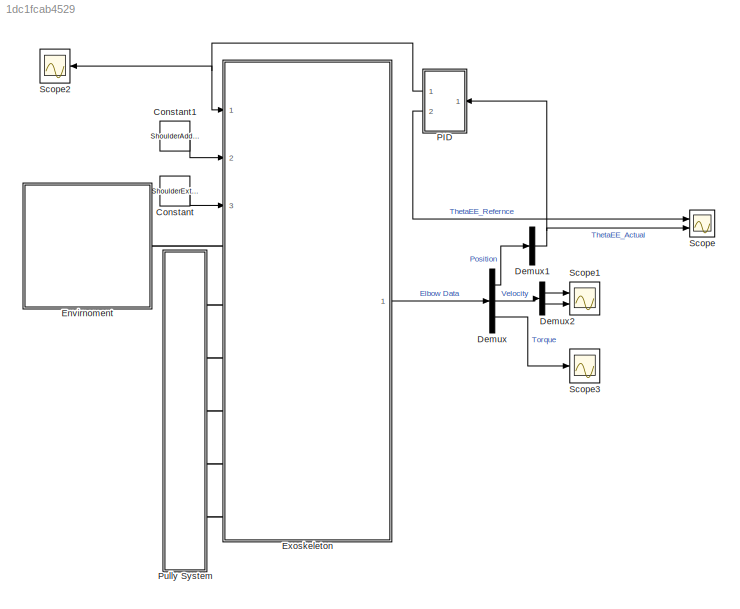
MODEL slx_1dc1fcab4529
KIND model
CONFIG AbsTol = 1e-3
CONFIG EnableMultiTasking = on
CONFIG FixedStep = 0.001
CONFIG MaxStep = auto
CONFIG MinStep = auto
CONFIG RelTol = 1e-3
CONFIG SampleTimeConstraint = Unconstrained
CONFIG SolverName = FixedStepAuto
CONFIG StartTime = 0.0
CONFIG StopTime = 10
BLOCK [Constant] Constant
  Value = ShoulderExtension
BLOCK [Constant] Constant1
  Value = ShoulderAdduction
BLOCK [Demux] Demux
  Outputs = 3
  Ports = [1, 3]
BLOCK [Demux] Demux1
  Outputs = 1
  Ports = [1, 1]
BLOCK [Demux] Demux2
  Outputs = 2
  Ports = [1, 2]
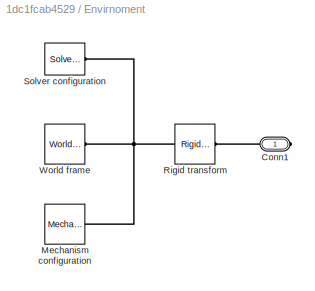
BLOCK [SubSystem] Envirnoment
  Ports = [0, 0, 0, 0, 0, 0, 1]
  RequestExecContextInheritance = off
BLOCK [PMIOPort] Envirnoment/Conn1
  Side = Right
BLOCK [Reference] Envirnoment/Mechanism configuration  REF=sm_lib/Utilities/Mechanism
Configuration
  Ports = [0, 0, 0, 0, 0, 0, 1]
  SourceBlock = sm_lib/Utilities/Mechanism\nConfiguration
  SourceProductBaseCode = MS
  SourceType = Mechanism\nConfiguration
BLOCK [Reference] Envirnoment/Rigid transform  REF=sm_lib/Frames and
Transforms/Rigid
Transform
  Ports = [0, 0, 0, 0, 0, 1, 1]
  SourceBlock = sm_lib/Frames and\nTransforms/Rigid\nTransform
  SourceProductBaseCode = MS
  SourceType = Rigid\nTransform
BLOCK [Reference] Envirnoment/Solver configuration  REF=nesl_utility/Solver
Configuration
  Ports = [0, 0, 0, 0, 0, 0, 1]
  SourceBlock = nesl_utility/Solver\nConfiguration
  SourceProductBaseCode = PW,SS
  SourceType = Solver\nConfiguration
BLOCK [Reference] Envirnoment/World frame  REF=sm_lib/Frames and
Transforms/World Frame
  Ports = [0, 0, 0, 0, 0, 0, 1]
  SourceBlock = sm_lib/Frames and\nTransforms/World Frame
  SourceProductBaseCode = MS
  SourceType = World Frame
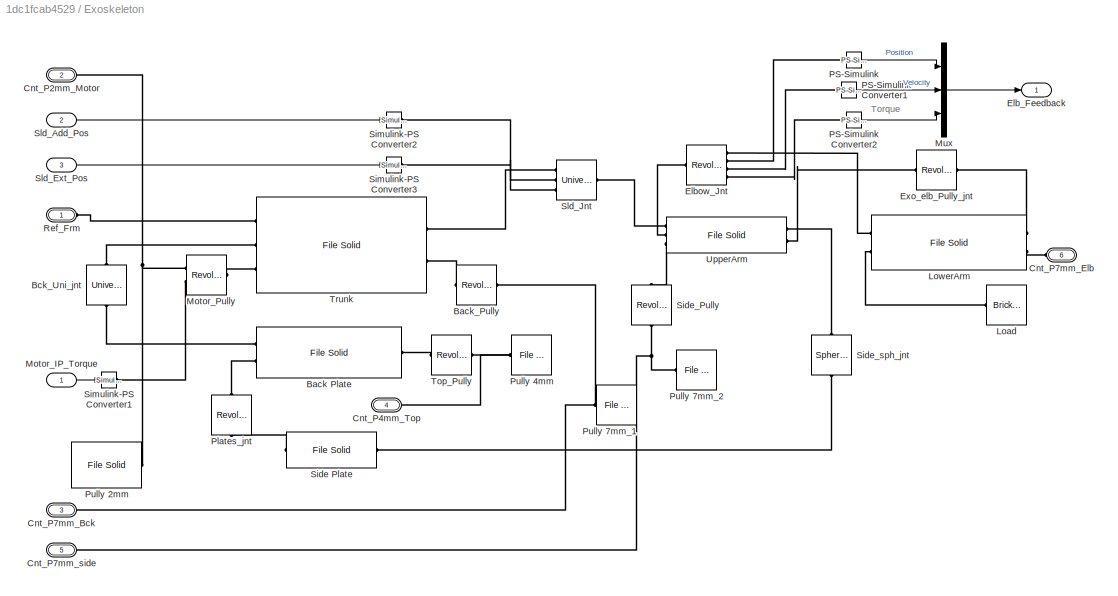
BLOCK [SubSystem] Exoskeleton
  Ports = [3, 1, 0, 0, 0, 6]
  RequestExecContextInheritance = off
BLOCK [Reference] Exoskeleton/Back Plate  REF=sm_lib/Body Elements/File Solid
  Ports = [0, 0, 0, 0, 0, 2, 1]
  SourceBlock = sm_lib/Body Elements/File Solid
  SourceProductBaseCode = MS
  SourceType = File Solid
BLOCK [Reference] Exoskeleton/Back_Pully  REF=sm_lib/Joints/Revolute Joint
  Ports = [0, 0, 0, 0, 0, 1, 1]
  SourceBlock = sm_lib/Joints/Revolute Joint
  SourceProductBaseCode = MS
  SourceType = Revolute Joint
BLOCK [Reference] Exoskeleton/Bck_Uni_jnt  REF=sm_lib/Joints/Universal
Joint
  NameLocation = left
  Ports = [0, 0, 0, 0, 0, 1, 1]
  SourceBlock = sm_lib/Joints/Universal\nJoint
  SourceProductBaseCode = MS
  SourceType = Universal\nJoint
BLOCK [PMIOPort] Exoskeleton/Cnt_P2mm_Motor
  Port = 2
  Side = Left
BLOCK [PMIOPort] Exoskeleton/Cnt_P4mm_Top
  Port = 4
  Side = Left
BLOCK [PMIOPort] Exoskeleton/Cnt_P7mm_Bck
  Port = 3
  Side = Left
BLOCK [PMIOPort] Exoskeleton/Cnt_P7mm_Elb
  Port = 6
  Side = Left
BLOCK [PMIOPort] Exoskeleton/Cnt_P7mm_side
  Port = 5
  Side = Left
BLOCK [Outport] Exoskeleton/Elb_Feedback
BLOCK [Reference] Exoskeleton/Elbow_Jnt  REF=sm_lib/Joints/Revolute Joint
  Ports = [0, 0, 0, 0, 0, 1, 4]
  SourceBlock = sm_lib/Joints/Revolute Joint
  SourceProductBaseCode = MS
  SourceType = Revolute Joint
BLOCK [Reference] Exoskeleton/Exo_elb_Pully_jnt  REF=sm_lib/Joints/Revolute Joint
  Ports = [0, 0, 0, 0, 0, 1, 1]
  SourceBlock = sm_lib/Joints/Revolute Joint
  SourceProductBaseCode = MS
  SourceType = Revolute Joint
BLOCK [Reference] Exoskeleton/Load  REF=sm_lib/Body Elements/Brick Solid
  Ports = [0, 0, 0, 0, 0, 1]
  SourceBlock = sm_lib/Body Elements/Brick Solid
  SourceProductBaseCode = MS
  SourceType = Brick Solid
BLOCK [Reference] Exoskeleton/LowerArm  REF=sm_lib/Body Elements/File Solid
  Ports = [0, 0, 0, 0, 0, 2, 2]
  SourceBlock = sm_lib/Body Elements/File Solid
  SourceProductBaseCode = MS
  SourceType = File Solid
BLOCK [Inport] Exoskeleton/Motor_IP_Torque
BLOCK [Reference] Exoskeleton/Motor_Pully  REF=sm_lib/Joints/Revolute Joint
  Ports = [0, 0, 0, 0, 0, 2, 1]
  SourceBlock = sm_lib/Joints/Revolute Joint
  SourceProductBaseCode = MS
  SourceType = Revolute Joint
BLOCK [Mux] Exoskeleton/Mux
  DisplayOption = bar
  Inputs = 3
  Ports = [3, 1]
BLOCK [Reference] Exoskeleton/PS-Simulink   REF=nesl_utility/PS-Simulink
Converter
  Ports = [0, 1, 0, 0, 0, 1]
  SourceBlock = nesl_utility/PS-Simulink\nConverter
  SourceProductBaseCode = PW,SS
  SourceType = PS-Simulink\nConverter
BLOCK [Reference] Exoskeleton/PS-Simulink Converter1  REF=nesl_utility/PS-Simulink
Converter
  Ports = [0, 1, 0, 0, 0, 1]
  SourceBlock = nesl_utility/PS-Simulink\nConverter
  SourceProductBaseCode = PW,SS
  SourceType = PS-Simulink\nConverter
BLOCK [Reference] Exoskeleton/PS-Simulink Converter2  REF=nesl_utility/PS-Simulink
Converter
  Ports = [0, 1, 0, 0, 0, 1]
  SourceBlock = nesl_utility/PS-Simulink\nConverter
  SourceProductBaseCode = PW,SS
  SourceType = PS-Simulink\nConverter
BLOCK [Reference] Exoskeleton/Plates_jnt  REF=sm_lib/Joints/Revolute Joint
  NameLocation = left
  Ports = [0, 0, 0, 0, 0, 1, 1]
  SourceBlock = sm_lib/Joints/Revolute Joint
  SourceProductBaseCode = MS
  SourceType = Revolute Joint
BLOCK [Reference] Exoskeleton/Pully 2mm  REF=sm_lib/Body Elements/File Solid
  Ports = [0, 0, 0, 0, 0, 1]
  SourceBlock = sm_lib/Body Elements/File Solid
  SourceProductBaseCode = MS
  SourceType = File Solid
BLOCK [Reference] Exoskeleton/Pully 4mm  REF=sm_lib/Body Elements/File Solid
  Ports = [0, 0, 0, 0, 0, 1]
  SourceBlock = sm_lib/Body Elements/File Solid
  SourceProductBaseCode = MS
  SourceType = File Solid
BLOCK [Reference] Exoskeleton/Pully 7mm_1  REF=sm_lib/Body Elements/File Solid
  Ports = [0, 0, 0, 0, 0, 1]
  SourceBlock = sm_lib/Body Elements/File Solid
  SourceProductBaseCode = MS
  SourceType = File Solid
BLOCK [Reference] Exoskeleton/Pully 7mm_2  REF=sm_lib/Body Elements/File Solid
  Ports = [0, 0, 0, 0, 0, 1]
  SourceBlock = sm_lib/Body Elements/File Solid
  SourceProductBaseCode = MS
  SourceType = File Solid
BLOCK [PMIOPort] Exoskeleton/Ref_Frm
  Side = Left
BLOCK [Reference] Exoskeleton/Side Plate  REF=sm_lib/Body Elements/File Solid
  Ports = [0, 0, 0, 0, 0, 1, 1]
  SourceBlock = sm_lib/Body Elements/File Solid
  SourceProductBaseCode = MS
  SourceType = File Solid
BLOCK [Reference] Exoskeleton/Side_Pully  REF=sm_lib/Joints/Revolute Joint
  NameLocation = left
  Ports = [0, 0, 0, 0, 0, 1, 1]
  SourceBlock = sm_lib/Joints/Revolute Joint
  SourceProductBaseCode = MS
  SourceType = Revolute Joint
BLOCK [Reference] Exoskeleton/Side_sph_jnt  REF=sm_lib/Joints/Spherical
Joint
  NameLocation = left
  Ports = [0, 0, 0, 0, 0, 1, 1]
  SourceBlock = sm_lib/Joints/Spherical\nJoint
  SourceProductBaseCode = MS
  SourceType = Spherical\nJoint
BLOCK [Reference] Exoskeleton/Simulink-PS Converter1  REF=nesl_utility/Simulink-PS
Converter
  Ports = [1, 0, 0, 0, 0, 0, 1]
  SourceBlock = nesl_utility/Simulink-PS\nConverter
  SourceProductBaseCode = PW,SS
  SourceType = Simulink-PS\nConverter
BLOCK [Reference] Exoskeleton/Simulink-PS Converter2  REF=nesl_utility/Simulink-PS
Converter
  Ports = [1, 0, 0, 0, 0, 0, 1]
  SourceBlock = nesl_utility/Simulink-PS\nConverter
  SourceProductBaseCode = PW,SS
  SourceType = Simulink-PS\nConverter
BLOCK [Reference] Exoskeleton/Simulink-PS Converter3  REF=nesl_utility/Simulink-PS
Converter
  Ports = [1, 0, 0, 0, 0, 0, 1]
  SourceBlock = nesl_utility/Simulink-PS\nConverter
  SourceProductBaseCode = PW,SS
  SourceType = Simulink-PS\nConverter
BLOCK [Inport] Exoskeleton/Sld_Add_Pos
  Port = 2
BLOCK [Inport] Exoskeleton/Sld_Ext_Pos
  Port = 3
BLOCK [Reference] Exoskeleton/Sld_Jnt  REF=sm_lib/Joints/Universal
Joint
  Ports = [0, 0, 0, 0, 0, 3, 1]
  SourceBlock = sm_lib/Joints/Universal\nJoint
  SourceProductBaseCode = MS
  SourceType = Universal\nJoint
BLOCK [Reference] Exoskeleton/Top_Pully  REF=sm_lib/Joints/Revolute Joint
  Ports = [0, 0, 0, 0, 0, 1, 1]
  SourceBlock = sm_lib/Joints/Revolute Joint
  SourceProductBaseCode = MS
  SourceType = Revolute Joint
BLOCK [Reference] Exoskeleton/Trunk  REF=sm_lib/Body Elements/File Solid
  Ports = [0, 0, 0, 0, 0, 3, 2]
  SourceBlock = sm_lib/Body Elements/File Solid
  SourceProductBaseCode = MS
  SourceType = File Solid
BLOCK [Reference] Exoskeleton/UpperArm  REF=sm_lib/Body Elements/File Solid
  Ports = [0, 0, 0, 0, 0, 3, 2]
  SourceBlock = sm_lib/Body Elements/File Solid
  SourceProductBaseCode = MS
  SourceType = File Solid
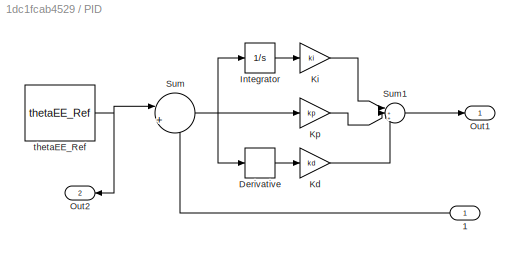
BLOCK [SubSystem] PID
  Ports = [1, 2]
  RequestExecContextInheritance = off
BLOCK [Inport] PID/1
BLOCK [Derivative] PID/Derivative
BLOCK [Integrator] PID/Integrator
  Ports = [1, 1]
BLOCK [Gain] PID/Kd
  Gain = kd
BLOCK [Gain] PID/Ki
  Gain = ki
BLOCK [Gain] PID/Kp
  Gain = kp
BLOCK [Outport] PID/Out1
BLOCK [Outport] PID/Out2
  Port = 2
BLOCK [Sum] PID/Sum
  Inputs = |+-
  Ports = [2, 1]
BLOCK [Sum] PID/Sum1
  Inputs = |+++
  Ports = [3, 1]
BLOCK [Constant] PID/thetaEE_Ref
  Value = thetaEE_Ref
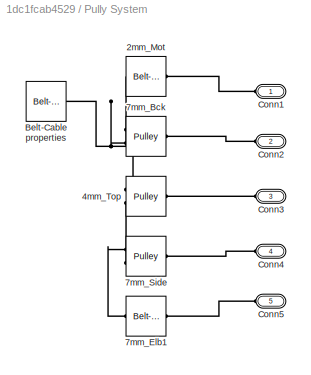
BLOCK [SubSystem] Pully System
  Ports = [0, 0, 0, 0, 0, 5]
  RequestExecContextInheritance = off
BLOCK [Reference] Pully System/2mm_Mot  REF=sm_lib/Belts and Cables/Belt-Cable Spool
  Ports = [0, 0, 0, 0, 0, 1, 1]
  SourceBlock = sm_lib/Belts and Cables/Belt-Cable Spool
  SourceProductBaseCode = MS
  SourceType = Belt-Cable Spool
BLOCK [Reference] Pully System/4mm_Top  REF=sm_lib/Belts and Cables/Pulley
  Ports = [0, 0, 0, 0, 0, 1, 2]
  SourceBlock = sm_lib/Belts and Cables/Pulley
  SourceProductBaseCode = MS
  SourceType = Pulley
BLOCK [Reference] Pully System/7mm_Bck  REF=sm_lib/Belts and Cables/Pulley
  Ports = [0, 0, 0, 0, 0, 1, 2]
  SourceBlock = sm_lib/Belts and Cables/Pulley
  SourceProductBaseCode = MS
  SourceType = Pulley
BLOCK [Reference] Pully System/7mm_Elb1  REF=sm_lib/Belts and Cables/Belt-Cable Spool
  Ports = [0, 0, 0, 0, 0, 1, 1]
  SourceBlock = sm_lib/Belts and Cables/Belt-Cable Spool
  SourceProductBaseCode = MS
  SourceType = Belt-Cable Spool
BLOCK [Reference] Pully System/7mm_Side  REF=sm_lib/Belts and Cables/Pulley
  Ports = [0, 0, 0, 0, 0, 1, 2]
  SourceBlock = sm_lib/Belts and Cables/Pulley
  SourceProductBaseCode = MS
  SourceType = Pulley
BLOCK [Reference] Pully System/Belt-Cable properties  REF=sm_lib/Belts and Cables/Belt-Cable
Properties
  Ports = [0, 0, 0, 0, 0, 1]
  SourceBlock = sm_lib/Belts and Cables/Belt-Cable\nProperties
  SourceProductBaseCode = MS
  SourceType = Belt-Cable\nProperties
BLOCK [PMIOPort] Pully System/Conn1
  Side = Left
BLOCK [PMIOPort] Pully System/Conn2
  Port = 2
  Side = Left
BLOCK [PMIOPort] Pully System/Conn3
  Port = 3
  Side = Left
BLOCK [PMIOPort] Pully System/Conn4
  Port = 4
  Side = Left
BLOCK [PMIOPort] Pully System/Conn5
  Port = 5
  Side = Left
BLOCK [Scope] Scope
  Floating = off
  NumInputPorts = 2
  Ports = [2]
  ScopeSpecificationString = Simulink.scopes.TimeScopeBlockCfg('CurrentConfiguration', extmgr.ConfigurationSet(extmgr.Configuration('Core','General UI',true),extmgr.Configuration('Core','Source UI',true),extmgr.Configuration('Sources','WiredSimulink',true),extmgr.Configuration('Visuals','Time Domain',true,'SerializedDisplays',{struct('MinYLimReal','-0.22959','MaxYLimReal','2.06564','YLabelReal','Elbow angle (Radian)','MinYLim...<+1609ch>
BLOCK [Scope] Scope1
  Floating = off
  NumInputPorts = 2
  Ports = [2]
  ScopeSpecificationString = Simulink.scopes.TimeScopeBlockCfg('CurrentConfiguration', extmgr.ConfigurationSet(extmgr.Configuration('Core','General UI',true),extmgr.Configuration('Core','Source UI',true),extmgr.Configuration('Sources','WiredSimulink',true,'DataLoggingVariableName','ScopeData1'),extmgr.Configuration('Visuals','Time Domain',true,'SerializedDisplays',{struct('MinYLimReal','-174.2491','MaxYLimReal','22.09535','YL...<+1451ch>
BLOCK [Scope] Scope2
  Floating = off
  NumInputPorts = 1
  Ports = [1]
  ScopeSpecificationString = Simulink.scopes.TimeScopeBlockCfg('CurrentConfiguration', extmgr.ConfigurationSet(extmgr.Configuration('Core','General UI',true),extmgr.Configuration('Core','Source UI',true),extmgr.Configuration('Sources','WiredSimulink',true,'DataLoggingVariableName','ScopeData2'),extmgr.Configuration('Visuals','Time Domain',true,'SerializedDisplays',{struct('MinYLimReal','-88.55756','MaxYLimReal','11.58514','YL...<+1453ch>
BLOCK [Scope] Scope3
  Floating = off
  NumInputPorts = 1
  Ports = [1]
  ScopeSpecificationString = Simulink.scopes.TimeScopeBlockCfg('CurrentConfiguration', extmgr.ConfigurationSet(extmgr.Configuration('Core','General UI',true),extmgr.Configuration('Core','Source UI',true),extmgr.Configuration('Sources','WiredSimulink',true,'DataLoggingVariableName','ScopeData3'),extmgr.Configuration('Visuals','Time Domain',true,'SerializedDisplays',{struct('MinYLimReal','-0.01489','MaxYLimReal','-0.00171','YLa...<+1401ch>
ANNOTATION Exoskeleton: Torque
LINE Constant1:1 -> Exoskeleton:2
LINE Constant:1 -> Exoskeleton:3
NET Demux1:1 -> PID:1, Scope:2
LINE Demux2:1 -> Scope1:1
LINE Demux2:2 -> Scope1:2
LINE Demux:1 -> Demux1:1
LINE Demux:2 -> Demux2:1
LINE Demux:3 -> Scope3:1
LINE Exoskeleton/Motor_IP_Torque:1 -> Exoskeleton/Simulink-PS Converter1:1
LINE Exoskeleton/Mux:1 -> Exoskeleton/Elb_Feedback:1
LINE Exoskeleton/PS-Simulink :1 -> Exoskeleton/Mux:1
LINE Exoskeleton/PS-Simulink Converter1:1 -> Exoskeleton/Mux:2
LINE Exoskeleton/PS-Simulink Converter2:1 -> Exoskeleton/Mux:3
LINE Exoskeleton/Sld_Add_Pos:1 -> Exoskeleton/Simulink-PS Converter2:1
LINE Exoskeleton/Sld_Ext_Pos:1 -> Exoskeleton/Simulink-PS Converter3:1
LINE Exoskeleton:1 -> Demux:1
LINE PID/1:1 -> PID/Sum:2
LINE PID/Derivative:1 -> PID/Kd:1
LINE PID/Integrator:1 -> PID/Ki:1
LINE PID/Kd:1 -> PID/Sum1:3
LINE PID/Ki:1 -> PID/Sum1:1
LINE PID/Kp:1 -> PID/Sum1:2
LINE PID/Sum1:1 -> PID/Out1:1
NET PID/Sum:1 -> PID/Derivative:1, PID/Integrator:1, PID/Kp:1
NET PID/thetaEE_Ref:1 -> PID/Out2:1, PID/Sum:1
NET PID:1 -> Exoskeleton:1, Scope2:1
LINE PID:2 -> Scope:1
PLINE Envirnoment/Conn1:RConn1 -- Envirnoment/Rigid transform:RConn1
PNET net1: Envirnoment/Mechanism configuration:RConn1 -- Envirnoment/Rigid transform:LConn1 -- Envirnoment/Solver configuration:RConn1 -- Envirnoment/World frame:RConn1
PLINE Envirnoment:RConn1 -- Exoskeleton:LConn1
PLINE Exoskeleton/Back Plate:LConn1 -- Exoskeleton/Bck_Uni_jnt:RConn1
PLINE Exoskeleton/Back Plate:LConn2 -- Exoskeleton/Plates_jnt:LConn1
PLINE Exoskeleton/Back Plate:RConn1 -- Exoskeleton/Top_Pully:LConn1
PLINE Exoskeleton/Back_Pully:LConn1 -- Exoskeleton/Trunk:RConn2
PNET net2: Exoskeleton/Back_Pully:RConn1 -- Exoskeleton/Cnt_P7mm_Bck:RConn1 -- Exoskeleton/Pully 7mm_1:LConn1
PLINE Exoskeleton/Bck_Uni_jnt:LConn1 -- Exoskeleton/Trunk:LConn2
PNET net3: Exoskeleton/Cnt_P2mm_Motor:RConn1 -- Exoskeleton/Motor_Pully:LConn1 -- Exoskeleton/Pully 2mm:LConn1
PNET net4: Exoskeleton/Cnt_P4mm_Top:RConn1 -- Exoskeleton/Pully 4mm:LConn1 -- Exoskeleton/Top_Pully:RConn1
PLINE Exoskeleton/Cnt_P7mm_Elb:RConn1 -- Exoskeleton/LowerArm:LConn2
PNET net5: Exoskeleton/Cnt_P7mm_side:RConn1 -- Exoskeleton/Pully 7mm_2:LConn1 -- Exoskeleton/Side_Pully:RConn1
PLINE Exoskeleton/Elbow_Jnt:LConn1 -- Exoskeleton/UpperArm:LConn2
PLINE Exoskeleton/Elbow_Jnt:RConn1 -- Exoskeleton/LowerArm:RConn1
PLINE Exoskeleton/Elbow_Jnt:RConn2 -- Exoskeleton/PS-Simulink :LConn1
PLINE Exoskeleton/Elbow_Jnt:RConn3 -- Exoskeleton/PS-Simulink Converter1:LConn1
PLINE Exoskeleton/Elbow_Jnt:RConn4 -- Exoskeleton/PS-Simulink Converter2:LConn1
PLINE Exoskeleton/Exo_elb_Pully_jnt:LConn1 -- Exoskeleton/UpperArm:RConn2
PLINE Exoskeleton/Exo_elb_Pully_jnt:RConn1 -- Exoskeleton/LowerArm:LConn1
PLINE Exoskeleton/Load:LConn1 -- Exoskeleton/LowerArm:RConn2
PLINE Exoskeleton/Motor_Pully:LConn2 -- Exoskeleton/Simulink-PS Converter1:RConn1
PLINE Exoskeleton/Motor_Pully:RConn1 -- Exoskeleton/Trunk:LConn3
PLINE Exoskeleton/Plates_jnt:RConn1 -- Exoskeleton/Side Plate:LConn1
PLINE Exoskeleton/Ref_Frm:RConn1 -- Exoskeleton/Trunk:LConn1
PLINE Exoskeleton/Side Plate:RConn1 -- Exoskeleton/Side_sph_jnt:RConn1
PLINE Exoskeleton/Side_Pully:LConn1 -- Exoskeleton/UpperArm:LConn3
PLINE Exoskeleton/Side_sph_jnt:LConn1 -- Exoskeleton/UpperArm:RConn1
PLINE Exoskeleton/Simulink-PS Converter2:RConn1 -- Exoskeleton/Sld_Jnt:LConn2
PLINE Exoskeleton/Simulink-PS Converter3:RConn1 -- Exoskeleton/Sld_Jnt:LConn3
PLINE Exoskeleton/Sld_Jnt:LConn1 -- Exoskeleton/Trunk:RConn1
PLINE Exoskeleton/Sld_Jnt:RConn1 -- Exoskeleton/UpperArm:LConn1
PLINE Exoskeleton:LConn2 -- Pully System:LConn1
PLINE Exoskeleton:LConn3 -- Pully System:LConn2
PLINE Exoskeleton:LConn4 -- Pully System:LConn3
PLINE Exoskeleton:LConn5 -- Pully System:LConn4
PLINE Exoskeleton:LConn6 -- Pully System:LConn5
PLINE Pully System/2mm_Mot:LConn1 -- Pully System/Conn1:RConn1
PNET net6: Pully System/2mm_Mot:RConn1 -- Pully System/7mm_Bck:RConn2 -- Pully System/Belt-Cable properties:LConn1
PLINE Pully System/4mm_Top:LConn1 -- Pully System/Conn3:RConn1
PLINE Pully System/4mm_Top:RConn1 -- Pully System/7mm_Bck:RConn1
PLINE Pully System/4mm_Top:RConn2 -- Pully System/7mm_Side:RConn2
PLINE Pully System/7mm_Bck:LConn1 -- Pully System/Conn2:RConn1
PLINE Pully System/7mm_Elb1:LConn1 -- Pully System/Conn5:RConn1
PLINE Pully System/7mm_Elb1:RConn1 -- Pully System/7mm_Side:RConn1
PLINE Pully System/7mm_Side:LConn1 -- Pully System/Conn4:RConn1
note: NET lines group one-source signal fan-out (src -> all destinations, sorted); 1:1 wires keep LINE; PNET lines group multi-terminal physical nets as a canonical sorted terminal list (undirected conserving connections); 2-terminal nets keep the pairwise PLINE form
